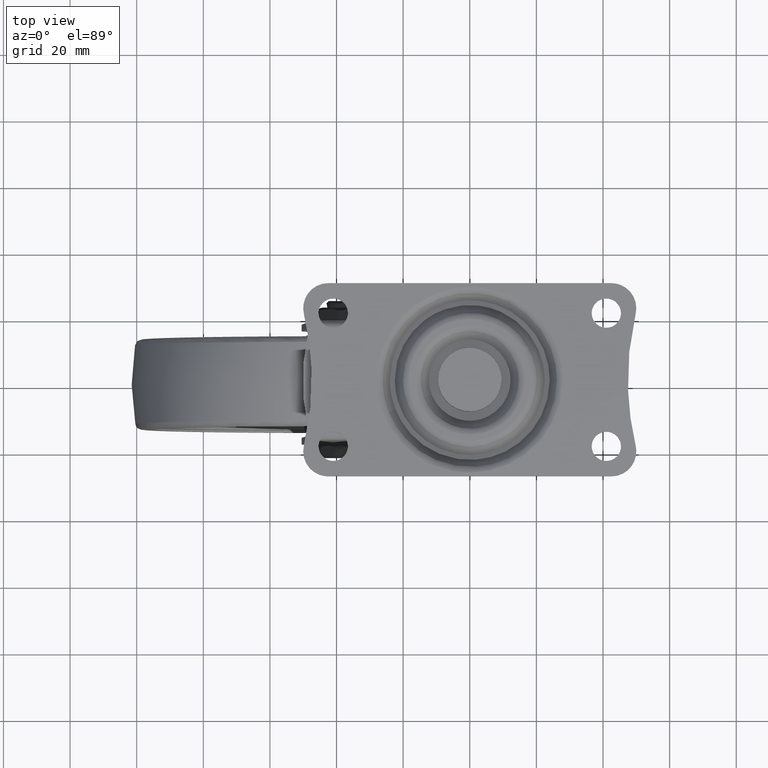
[diagram: clean part render]
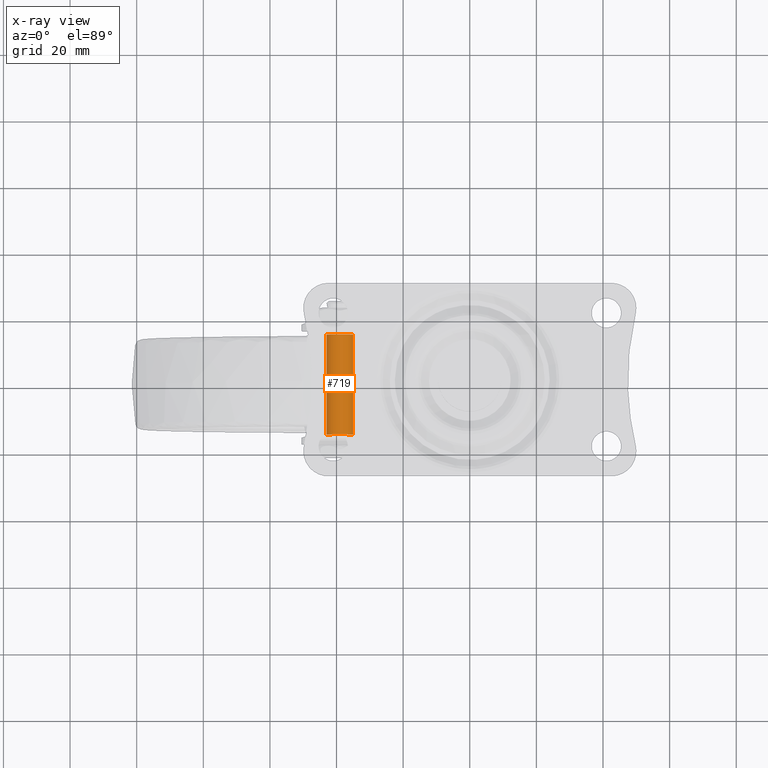
[diagram: x-ray — body ghosted, one internal face saturated and labeled with its STEP entity id]
A machine part, top view, then the same camera in x-ray: the body is ghosted and one INTERNAL B-rep face — a face not visible from any outside direction — is saturated and labeled: STEP entity #719.
In plain terms, the highlighted face is a freeform B-spline surface patch.
Its self-contained STEP definition (entity closure, byte-faithful):
#556=CARTESIAN_POINT('',(-35.027961894551247,-15.0,-83.027863061323217));
#557=VERTEX_POINT('',#556);
#575=CARTESIAN_POINT('',(-35.027961894551247,15.0,-83.027863061323231));
#576=VERTEX_POINT('',#575);
#577=CARTESIAN_POINT('',(-35.027961894551247,-15.0,-83.027863061323217));
#578=CARTESIAN_POINT('',(-35.027961894551247,15.0,-83.027863061323231));
#579=QUASI_UNIFORM_CURVE('',1,(#577,#578),.UNSPECIFIED.,.F.,.U.);
#580=EDGE_CURVE('',#557,#576,#579,.T.);
#599=CARTESIAN_POINT('',(-42.992539193649229,15.0,-83.744194158764628));
#600=VERTEX_POINT('',#599);
#614=CARTESIAN_POINT('',(-42.992539193649229,-15.0,-83.744194158764628));
#615=VERTEX_POINT('',#614);
#616=CARTESIAN_POINT('',(-42.992539193649229,-15.0,-83.744194158764628));
#617=CARTESIAN_POINT('',(-42.992539193649229,15.0,-83.744194158764628));
#618=QUASI_UNIFORM_CURVE('',1,(#616,#617),.UNSPECIFIED.,.F.,.U.);
#619=EDGE_CURVE('',#615,#600,#618,.T.);
#637=CARTESIAN_POINT('',(-42.992539193687463,-15.750000000000000,-83.744194158139422));
#638=CARTESIAN_POINT('',(-43.236733351826892,-15.750000000000009,-79.751654964451959));
#639=CARTESIAN_POINT('',(-39.244194158139429,-15.750000000000000,-79.507460806312537));
#640=CARTESIAN_POINT('',(-35.473826036641995,-15.750000000000000,-79.276855213069908));
#641=CARTESIAN_POINT('',(-35.027961894545349,-15.750000000000005,-83.027863061372983));
#642=CARTESIAN_POINT('',(-42.992539193687463,15.768750000000001,-83.744194158139422));
#643=CARTESIAN_POINT('',(-43.236733351826892,15.768749999999997,-79.751654964451959));
#644=CARTESIAN_POINT('',(-39.244194158139429,15.768750000000001,-79.507460806312537));
#645=CARTESIAN_POINT('',(-35.473826036641995,15.768750000000002,-79.276855213069908));
#646=CARTESIAN_POINT('',(-35.027961894545349,15.768750000000006,-83.027863061372983));
#654=(BOUNDED_SURFACE()B_SPLINE_SURFACE(2,1,((#637,#642),(#638,#643),(#639,#644),(#640,#645),(#641,#646)),.UNSPECIFIED.,.F.,.F.,.U.)B_SPLINE_SURFACE_WITH_KNOTS((3,2,3),(2,2),(0.0,6.627416997969489,12.989737316020200),(0.0,31.518750000000011),.UNSPECIFIED.)GEOMETRIC_REPRESENTATION_ITEM()RATIONAL_B_SPLINE_SURFACE(((1.0,1.0),(0.707106781186548,0.707106781186548),(1.0,1.0),(0.718822509939086,0.718822509939086),(0.977505800795127,0.977505800795127)))REPRESENTATION_ITEM('')SURFACE());
#655=CARTESIAN_POINT('',(-39.0,-15.0,-79.500000000000000));
#656=VERTEX_POINT('',#655);
#657=CARTESIAN_POINT('',(-39.0,-15.0,-79.500000000000000));
#658=CARTESIAN_POINT('',(-35.447301896284138,-14.999999999999998,-79.500000000000000));
#659=CARTESIAN_POINT('',(-35.027961894551247,-14.999999999999998,-83.027863061323231));
#667=(BOUNDED_CURVE()B_SPLINE_CURVE(2,(#657,#658,#659),.UNSPECIFIED.,.F.,.U.)B_SPLINE_CURVE_WITH_KNOTS((3,3),(0.0,0.229562473511411),.UNSPECIFIED.)CURVE()GEOMETRIC_REPRESENTATION_ITEM()RATIONAL_B_SPLINE_CURVE((1.0,0.731050832857859,0.956026754179589))REPRESENTATION_ITEM(''));
#668=EDGE_CURVE('',#656,#557,#667,.T.);
#669=ORIENTED_EDGE('',*,*,#668,.F.);
#670=CARTESIAN_POINT('',(-42.992539193649229,-15.000000000000004,-83.744194158764628));
#671=CARTESIAN_POINT('',(-43.000000000000007,-14.999999999999998,-83.622211053821317));
#672=CARTESIAN_POINT('',(-43.0,-15.0,-83.500000000000000));
#673=CARTESIAN_POINT('',(-42.999999999999993,-14.999999999999995,-79.500000000000014));
#674=CARTESIAN_POINT('',(-39.0,-15.0,-79.500000000000000));
#682=(BOUNDED_CURVE()B_SPLINE_CURVE(2,(#670,#671,#672,#673,#674),.UNSPECIFIED.,.F.,.U.)B_SPLINE_CURVE_WITH_KNOTS((3,2,3),(0.739332962187929,0.750000000000000,1.0),.UNSPECIFIED.)CURVE()GEOMETRIC_REPRESENTATION_ITEM()RATIONAL_B_SPLINE_CURVE((0.976072041557385,0.987502787840071,1.0,0.707106781186548,1.0))REPRESENTATION_ITEM(''));
#683=EDGE_CURVE('',#615,#656,#682,.T.);
#684=ORIENTED_EDGE('',*,*,#683,.F.);
#685=ORIENTED_EDGE('',*,*,#619,.T.);
#686=CARTESIAN_POINT('',(-39.0,15.0,-79.500000000000000));
#687=VERTEX_POINT('',#686);
#688=CARTESIAN_POINT('',(-42.992539193649229,15.000000000000004,-83.744194158764628));
#689=CARTESIAN_POINT('',(-43.0,15.000000000000002,-83.622211053821317));
#690=CARTESIAN_POINT('',(-43.0,15.0,-83.500000000000000));
#691=CARTESIAN_POINT('',(-42.999999999999993,14.999999999999995,-79.500000000000014));
#692=CARTESIAN_POINT('',(-39.0,15.0,-79.500000000000000));
#700=(BOUNDED_CURVE()B_SPLINE_CURVE(2,(#688,#689,#690,#691,#692),.UNSPECIFIED.,.F.,.U.)B_SPLINE_CURVE_WITH_KNOTS((3,2,3),(0.739332962187929,0.750000000000000,1.0),.UNSPECIFIED.)CURVE()GEOMETRIC_REPRESENTATION_ITEM()RATIONAL_B_SPLINE_CURVE((0.976072041557384,0.987502787840071,1.0,0.707106781186548,1.0))REPRESENTATION_ITEM(''));
#701=EDGE_CURVE('',#600,#687,#700,.T.);
#702=ORIENTED_EDGE('',*,*,#701,.T.);
#703=CARTESIAN_POINT('',(-39.0,15.0,-79.500000000000000));
#704=CARTESIAN_POINT('',(-35.447301896284131,14.999999999999993,-79.500000000000000));
#705=CARTESIAN_POINT('',(-35.027961894551247,15.000000000000004,-83.027863061323231));
#713=(BOUNDED_CURVE()B_SPLINE_CURVE(2,(#703,#704,#705),.UNSPECIFIED.,.F.,.U.)B_SPLINE_CURVE_WITH_KNOTS((3,3),(0.0,0.229562473511412),.UNSPECIFIED.)CURVE()GEOMETRIC_REPRESENTATION_ITEM()RATIONAL_B_SPLINE_CURVE((1.0,0.731050832857859,0.956026754179590))REPRESENTATION_ITEM(''));
#714=EDGE_CURVE('',#687,#576,#713,.T.);
#715=ORIENTED_EDGE('',*,*,#714,.T.);
#716=ORIENTED_EDGE('',*,*,#580,.F.);
#717=EDGE_LOOP('',(#669,#684,#685,#702,#715,#716));
#718=FACE_OUTER_BOUND('',#717,.T.);
#719=ADVANCED_FACE('',(#718),#654,.F.);